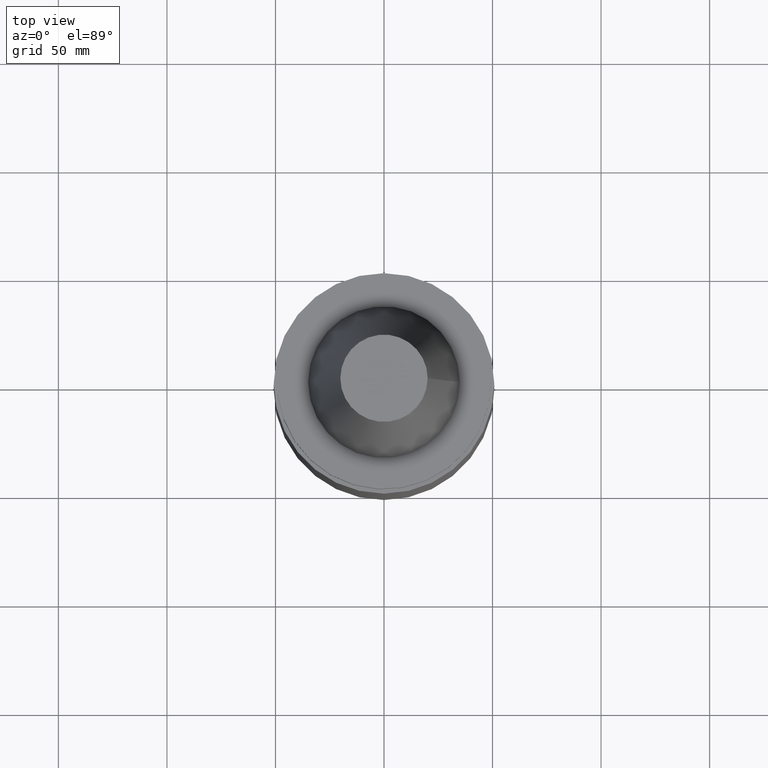
[diagram: clean part render]
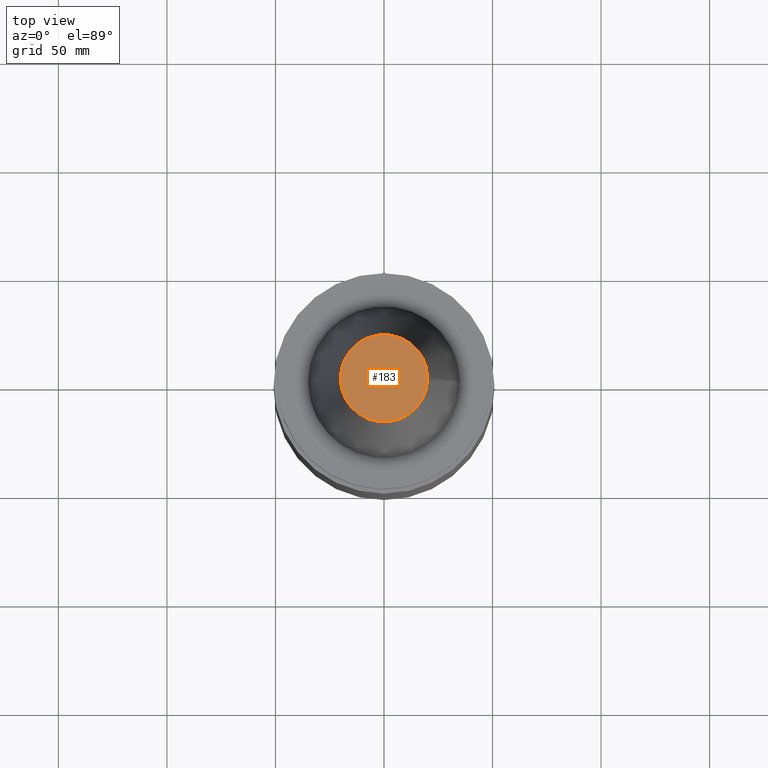
[diagram: same view with one face highlighted and labeled with its STEP entity id]
A machine part, top view. The second image highlights one B-rep face of the part: STEP entity #183.
In plain terms, the highlighted planar face has unit normal (0, 0, -1).
Its self-contained STEP definition (entity closure, byte-faithful):
#35 = ORIENTED_EDGE ( 'NONE', *, *, #80, .T. ) ;
#49 = DIRECTION ( 'NONE',  ( 1.000000000000000000, 0.000000000000000000, 0.000000000000000000 ) ) ;
#80 = EDGE_CURVE ( 'NONE', #370, #370, #111, .T. ) ;
#86 = AXIS2_PLACEMENT_3D ( 'NONE', #117, #238, #363 ) ;
#111 = CIRCLE ( 'NONE', #382, 20.10819343178871321 ) ;
#115 = FACE_OUTER_BOUND ( 'NONE', #185, .T. ) ;
#117 = CARTESIAN_POINT ( 'NONE',  ( 0.000000000000000000, 20.10819343178871321, 101.5999999999999943 ) ) ;
#183 = ADVANCED_FACE ( 'NONE', ( #115 ), #390, .F. ) ;
#185 = EDGE_LOOP ( 'NONE', ( #35 ) ) ;
#238 = DIRECTION ( 'NONE',  ( 0.000000000000000000, 0.000000000000000000, -1.000000000000000000 ) ) ;
#246 = CARTESIAN_POINT ( 'NONE',  ( 20.10819343178871321, 0.000000000000000000, 101.5999999999999801 ) ) ;
#353 = DIRECTION ( 'NONE',  ( -0.000000000000000000, -0.000000000000000000, 1.000000000000000000 ) ) ;
#363 = DIRECTION ( 'NONE',  ( -1.000000000000000000, 0.000000000000000000, -0.000000000000000000 ) ) ;
#370 = VERTEX_POINT ( 'NONE', #246 ) ;
#382 = AXIS2_PLACEMENT_3D ( 'NONE', #386, #353, #49 ) ;
#386 = CARTESIAN_POINT ( 'NONE',  ( 0.000000000000000000, 0.000000000000000000, 101.5999999999999801 ) ) ;
#390 = PLANE ( 'NONE',  #86 ) ;